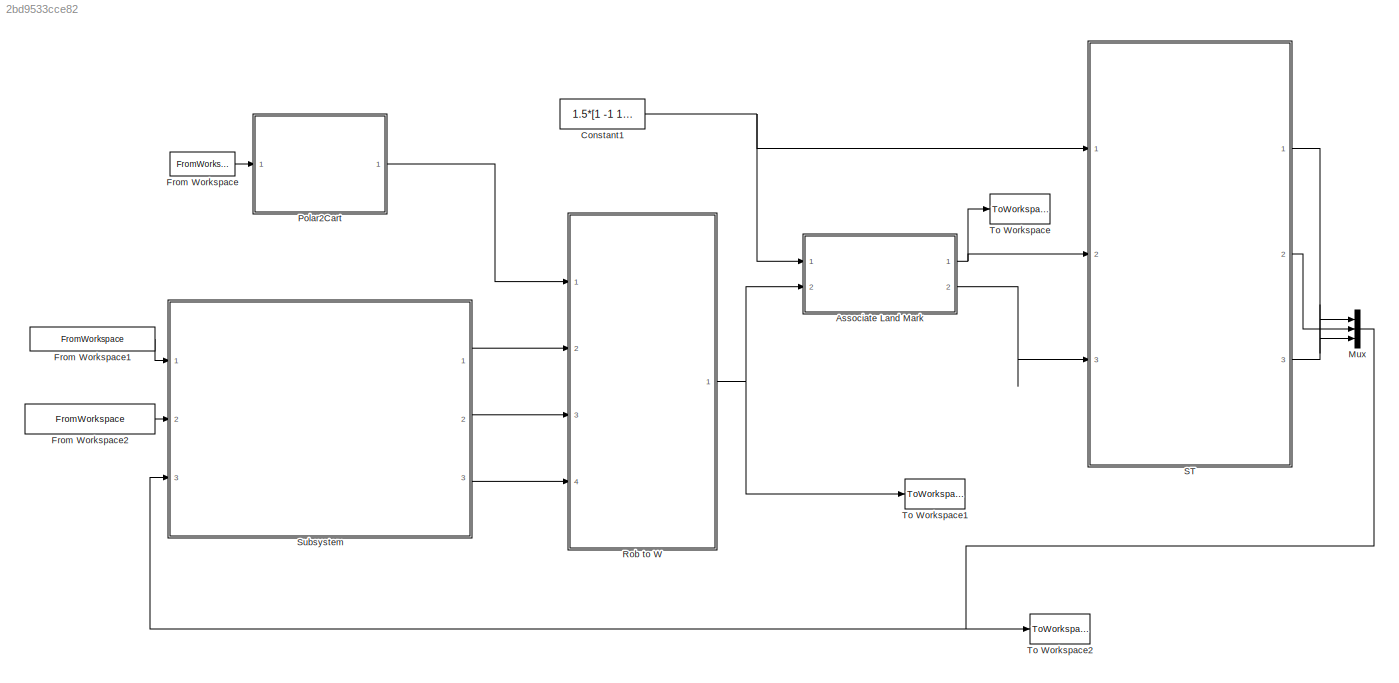
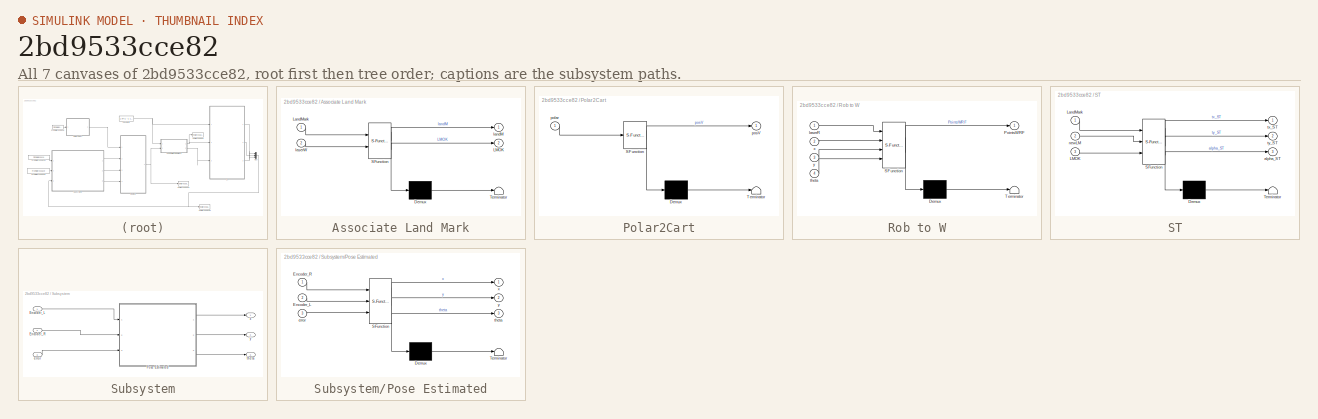
[diagram: thumbnail index - all 7 canvases of the model, root first then tree order]
MODEL slx_2bd9533cce82
KIND model
CONFIG AbsTol = auto
CONFIG FixedStep = auto
CONFIG MaxStep = auto
CONFIG MinStep = auto
CONFIG RelTol = 1e-3
CONFIG SampleTimeConstraint = Unconstrained
CONFIG Solver = ode45
CONFIG SolverMode = Auto
CONFIG SolverName = ode45
CONFIG StartTime = 0.0
CONFIG StopTime = 10.0
BLOCK [SubSystem] Associate Land Mark
  ErrorFcn = Stateflow.Translate.translate
  PermitHierarchicalResolution = ExplicitOnly
  Ports = [2, 2]
  RequestExecContextInheritance = off
  SFBlockType = MATLAB Function
  TreatAsAtomicUnit = on
BLOCK [Demux] Associate Land Mark/ Demux 
  Outputs = 1
  Ports = [1, 1]
BLOCK [S-Function] Associate Land Mark/ SFunction 
  EnableBusSupport = on
  FunctionName = sf_sfun
  PortCounts = [2 3]
  Ports = [2, 3]
  Tag = Stateflow S-Function Localization_Model_1 3
BLOCK [Terminator] Associate Land Mark/ Terminator 
BLOCK [Outport] Associate Land Mark/LMOK
  IconDisplay = Port number
  Port = 2
BLOCK [Inport] Associate Land Mark/LandMark
  IconDisplay = Port number
BLOCK [Outport] Associate Land Mark/landM
  IconDisplay = Port number
BLOCK [Inport] Associate Land Mark/laserW
  IconDisplay = Port number
  Port = 2
BLOCK [Constant] Constant1
  Value = 1.5*[1 -1 1 -1;1 1 -1 -1]
BLOCK [FromWorkspace] From Workspace
  SampleTime = 0
  VariableName = lds_dis
  ZeroCross = on
BLOCK [FromWorkspace] From Workspace1
  SampleTime = 0
  VariableName = data_enc(:,[1,6])
  ZeroCross = on
BLOCK [FromWorkspace] From Workspace2
  SampleTime = 0
  VariableName = data_enc(:,[1,7])
  ZeroCross = on
BLOCK [Mux] Mux
  DisplayOption = bar
  Inputs = 3
  Ports = [3, 1]
BLOCK [SubSystem] Polar2Cart
  ErrorFcn = Stateflow.Translate.translate
  PermitHierarchicalResolution = ExplicitOnly
  Ports = [1, 1]
  RequestExecContextInheritance = off
  SFBlockType = MATLAB Function
  TreatAsAtomicUnit = on
BLOCK [Demux] Polar2Cart/ Demux 
  Outputs = 1
  Ports = [1, 1]
BLOCK [S-Function] Polar2Cart/ SFunction 
  EnableBusSupport = on
  FunctionName = sf_sfun
  PortCounts = [1 2]
  Ports = [1, 2]
  Tag = Stateflow S-Function Localization_Model_1 2
BLOCK [Terminator] Polar2Cart/ Terminator 
BLOCK [Inport] Polar2Cart/polar
  IconDisplay = Port number
BLOCK [Outport] Polar2Cart/posV
  IconDisplay = Port number
BLOCK [SubSystem] Rob to W
  ErrorFcn = Stateflow.Translate.translate
  PermitHierarchicalResolution = ExplicitOnly
  Ports = [4, 1]
  RequestExecContextInheritance = off
  SFBlockType = MATLAB Function
  TreatAsAtomicUnit = on
BLOCK [Demux] Rob to W/ Demux 
  Outputs = 1
  Ports = [1, 1]
BLOCK [S-Function] Rob to W/ SFunction 
  EnableBusSupport = on
  FunctionName = sf_sfun
  PortCounts = [4 2]
  Ports = [4, 2]
  Tag = Stateflow S-Function Localization_Model_1 1
BLOCK [Terminator] Rob to W/ Terminator 
BLOCK [Outport] Rob to W/PointsWRF
  IconDisplay = Port number
BLOCK [Inport] Rob to W/laserR
  IconDisplay = Port number
BLOCK [Inport] Rob to W/theta
  IconDisplay = Port number
  Port = 4
BLOCK [Inport] Rob to W/x
  IconDisplay = Port number
  Port = 2
BLOCK [Inport] Rob to W/y
  IconDisplay = Port number
  Port = 3
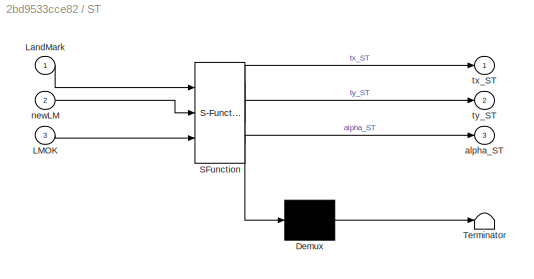
BLOCK [SubSystem] ST
  ErrorFcn = Stateflow.Translate.translate
  PermitHierarchicalResolution = ExplicitOnly
  Ports = [3, 3]
  RequestExecContextInheritance = off
  SFBlockType = MATLAB Function
  TreatAsAtomicUnit = on
BLOCK [Demux] ST/ Demux 
  Outputs = 1
  Ports = [1, 1]
BLOCK [S-Function] ST/ SFunction 
  EnableBusSupport = on
  FunctionName = sf_sfun
  PortCounts = [3 4]
  Ports = [3, 4]
  Tag = Stateflow S-Function Localization_Model_1 4
BLOCK [Terminator] ST/ Terminator 
BLOCK [Inport] ST/LMOK
  IconDisplay = Port number
  Port = 3
BLOCK [Inport] ST/LandMark
  IconDisplay = Port number
BLOCK [Outport] ST/alpha_ST
  IconDisplay = Port number
  Port = 3
BLOCK [Inport] ST/newLM
  IconDisplay = Port number
  Port = 2
BLOCK [Outport] ST/tx_ST
  IconDisplay = Port number
BLOCK [Outport] ST/ty_ST
  IconDisplay = Port number
  Port = 2
BLOCK [SubSystem] Subsystem
  Ports = [3, 3]
  RequestExecContextInheritance = off
BLOCK [Inport] Subsystem/Encoder_L
  IconDisplay = Port number
BLOCK [Inport] Subsystem/Encoder_R
  IconDisplay = Port number
  Port = 2
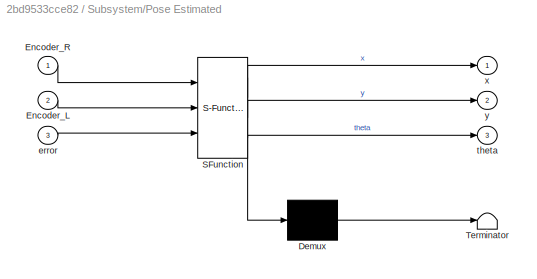
BLOCK [SubSystem] Subsystem/Pose Estimated
  ErrorFcn = Stateflow.Translate.translate
  PermitHierarchicalResolution = ExplicitOnly
  Ports = [3, 3]
  RequestExecContextInheritance = off
  SFBlockType = MATLAB Function
  TreatAsAtomicUnit = on
BLOCK [Demux] Subsystem/Pose Estimated/ Demux 
  Outputs = 1
  Ports = [1, 1]
BLOCK [S-Function] Subsystem/Pose Estimated/ SFunction 
  EnableBusSupport = on
  FunctionName = sf_sfun
  PortCounts = [3 4]
  Ports = [3, 4]
  Tag = Stateflow S-Function Localization_Model_1 5
BLOCK [Terminator] Subsystem/Pose Estimated/ Terminator 
BLOCK [Inport] Subsystem/Pose Estimated/Encoder_L
  IconDisplay = Port number
  Port = 2
BLOCK [Inport] Subsystem/Pose Estimated/Encoder_R
  IconDisplay = Port number
BLOCK [Inport] Subsystem/Pose Estimated/error
  IconDisplay = Port number
  Port = 3
BLOCK [Outport] Subsystem/Pose Estimated/theta
  IconDisplay = Port number
  Port = 3
BLOCK [Outport] Subsystem/Pose Estimated/x
  IconDisplay = Port number
BLOCK [Outport] Subsystem/Pose Estimated/y
  IconDisplay = Port number
  Port = 2
BLOCK [Inport] Subsystem/error
  IconDisplay = Port number
  Port = 3
BLOCK [Outport] Subsystem/theta
  IconDisplay = Port number
  Port = 3
BLOCK [Outport] Subsystem/x
  IconDisplay = Port number
BLOCK [Outport] Subsystem/y
  IconDisplay = Port number
  Port = 2
BLOCK [ToWorkspace] To Workspace
  FixptAsFi = on
  MaxDataPoints = inf
  Ports = [1]
  SampleTime = -1
  Save2DSignal = 3-D array (concatenate along third dimension)
  SaveFormat = Timeseries
  VariableName = assLnd
BLOCK [ToWorkspace] To Workspace1
  FixptAsFi = on
  MaxDataPoints = inf
  Ports = [1]
  SampleTime = -1
  Save2DSignal = 3-D array (concatenate along third dimension)
  SaveFormat = Timeseries
  VariableName = laserW
BLOCK [ToWorkspace] To Workspace2
  FixptAsFi = on
  MaxDataPoints = inf
  Ports = [1]
  SampleTime = -1
  Save2DSignal = 3-D array (concatenate along third dimension)
  SaveFormat = Timeseries
  VariableName = error
NET Associate Land Mark:1 -> ST:2, To Workspace:1
LINE Associate Land Mark:2 -> ST:3
NET Constant1:1 -> Associate Land Mark:1, ST:1
LINE From Workspace1:1 -> Subsystem:1
LINE From Workspace2:1 -> Subsystem:2
LINE From Workspace:1 -> Polar2Cart:1
NET Mux:1 -> Subsystem:3, To Workspace2:1
LINE Polar2Cart:1 -> Rob to W:1
NET Rob to W:1 -> Associate Land Mark:2, To Workspace1:1
LINE ST:1 -> Mux:1
LINE ST:2 -> Mux:2
LINE ST:3 -> Mux:3
LINE Subsystem/Encoder_L:1 -> Subsystem/Pose Estimated:1
LINE Subsystem/Encoder_R:1 -> Subsystem/Pose Estimated:2
LINE Subsystem/Pose Estimated:1 -> Subsystem/x:1
LINE Subsystem/Pose Estimated:2 -> Subsystem/y:1
LINE Subsystem/Pose Estimated:3 -> Subsystem/theta:1
LINE Subsystem/error:1 -> Subsystem/Pose Estimated:3
LINE Subsystem:1 -> Rob to W:2
LINE Subsystem:2 -> Rob to W:3
LINE Subsystem:3 -> Rob to W:4
note: NET lines group one-source signal fan-out (src -> all destinations, sorted); 1:1 wires keep LINE
CHART Rob to W states=1 transitions=1
  STATE_LABEL 'eML_blk_kernel()'
  STATE_LABEL 'SCRIPT:\nfunction PointsWRF = rob2W(laserR,x,y,theta)\n    \n    laserR = [laserR;zeros(1,360);ones(1,360)];\n    PointsWRF = transl(x,y,0)*trotz(theta)*laserR;\n    PointsWRF = PointsWRF(1:2,:);\n\nend'
CHART Polar2Cart states=1 transitions=1
  STATE_LABEL 'eML_blk_kernel()'
  STATE_LABEL "SCRIPT:\nfunction posV = polar2Cart(polar)\n\n    angle = 1:360;\n    angle = angle*2*pi/360;\n    lx = polar'.*cos(angle)/1000;\n    ly = polar'.*sin(angle)/1000;\n    \n    posV = [lx;ly];\nend"
CHART Associate Land Mark states=1 transitions=1
  STATE_LABEL 'eML_blk_kernel()'
  STATE_LABEL "SCRIPT:\nfunction [landM,LMOK] = assoLndMrk(LandMark,laserW)\n\n    lx=laserW(1,:);\n    ly=laserW(2,:);\n    landM=[];\n    LMOK=ones(1,4);\n    for i=1:4 %Group the laser if they are near or far from the LM\n       distLM=sqrt((lx-LandMark(1,i)).^2+(ly-LandMark(2,i)).^2);\n       goodL=[lx(distLM<distTH);ly(distLM<distTH)];\n       if length(goodL)>2\n           landM=[landM mean(goodL')'];\n       else\n   ...<+38ch>"
CHART ST states=1 transitions=1
  STATE_LABEL 'eML_blk_kernel()'
  STATE_LABEL 'SCRIPT:\nfunction [tx_ST,ty_ST,alpha_ST] = ST(LandMark,newLM,LMOK)\n    if length(newLM)>1\n        LandMark=LandMark(:,LMOK==1);\n        A =zeros(2*sum(LMOK),4);\n        for i=1:sum(LMOK)\n            A(2*i-1,:) = [LandMark(1,i),LandMark(2,i),1,0];\n            A(2*i-1,:) = [LandMark(2,i),-LandMark(1,i),0,1];\n        end\n        B = zeros(2*sum(LMOK),1);%Build Matrix B\n        for i=1:sum(LMOK)\n      ...<+274ch>'
CHART Subsystem/Pose Estimated states=1 transitions=1
  STATE_LABEL 'eML_blk_kernel()'
  STATE_LABEL 'SCRIPT:\nfunction [x,y,theta] = Pose_Est(Encoder_R,Encoder_L,error)\n    \n    %  internal variable to be mantain its values\n    persistent x_w y_w suma_theta\n    %  variable initialization\n    if isempty (x_w)\n        x_w=0;\n    end\n    if isempty (y_w)\n        y_w=0;\n    end\n    if isempty (suma_theta)\n        suma_theta=0;\n    end\n    %  compute the odometry    %\n    delta_th=(Encoder_R-Encoder_L)...<+310ch>'
